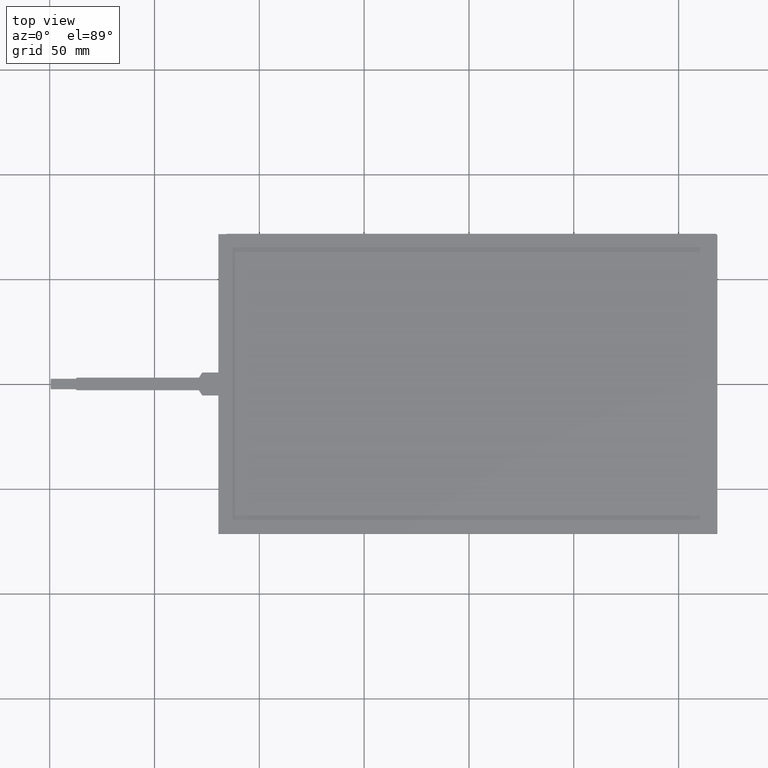
[diagram: clean part render]
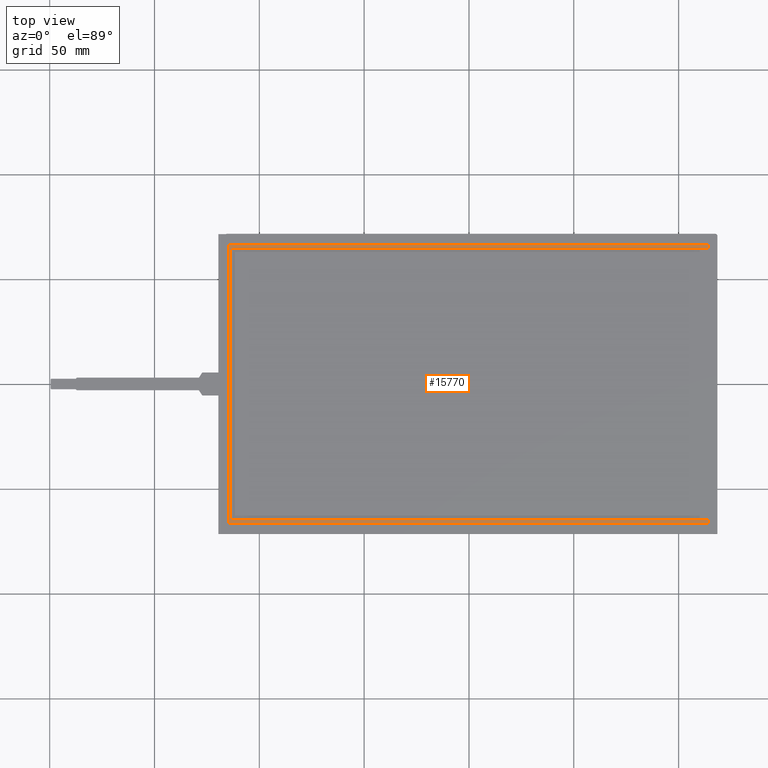
[diagram: same view with one face highlighted and labeled with its STEP entity id]
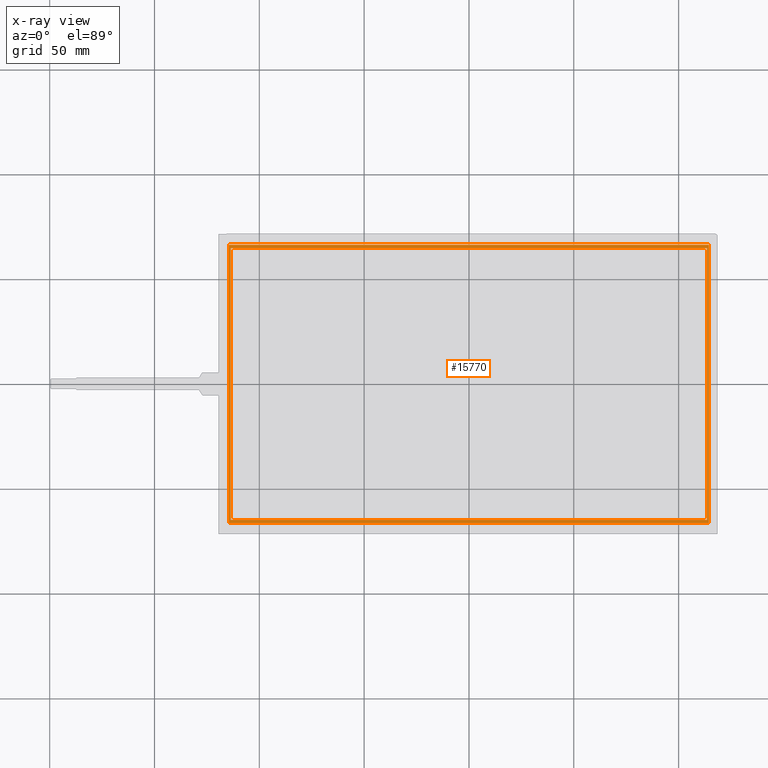
[diagram: x-ray of the same camera — body ghosted, the highlighted face saturated]
A machine part, top view. The second image highlights one B-rep face of the part: STEP entity #15770.
The next image is the same camera in x-ray: the body ghosted, the highlighted face saturated — about 0% of this face is hidden behind the body in this view.
In plain terms, the highlighted planar face has unit normal (0, 0, -1).
Its self-contained STEP definition (entity closure, byte-faithful):
#397=FACE_BOUND('',#1362,.T.);
#513=FACE_OUTER_BOUND('',#1361,.T.);
#1361=EDGE_LOOP('',(#10479,#10480,#10481,#10482));
#1362=EDGE_LOOP('',(#10483,#10484,#10485,#10486));
#2324=LINE('',#22079,#4419);
#2327=LINE('',#22085,#4422);
#2331=LINE('',#22092,#4426);
#2333=LINE('',#22095,#4428);
#2336=LINE('',#22103,#4431);
#2340=LINE('',#22110,#4435);
#2343=LINE('',#22116,#4438);
#2345=LINE('',#22119,#4440);
#4419=VECTOR('',#17802,10.);
#4422=VECTOR('',#17807,10.);
#4426=VECTOR('',#17813,10.);
#4428=VECTOR('',#17817,10.);
#4431=VECTOR('',#17822,10.);
#4435=VECTOR('',#17828,10.);
#4438=VECTOR('',#17833,10.);
#4440=VECTOR('',#17837,10.);
#6497=VERTEX_POINT('',#22076);
#6498=VERTEX_POINT('',#22078);
#6500=VERTEX_POINT('',#22084);
#6502=VERTEX_POINT('',#22090);
#6505=VERTEX_POINT('',#22100);
#6506=VERTEX_POINT('',#22102);
#6508=VERTEX_POINT('',#22108);
#6510=VERTEX_POINT('',#22114);
#8056=EDGE_CURVE('',#6497,#6498,#2324,.T.);
#8059=EDGE_CURVE('',#6498,#6500,#2327,.T.);
#8063=EDGE_CURVE('',#6502,#6497,#2331,.T.);
#8065=EDGE_CURVE('',#6500,#6502,#2333,.T.);
#8068=EDGE_CURVE('',#6505,#6506,#2336,.T.);
#8072=EDGE_CURVE('',#6508,#6505,#2340,.T.);
#8075=EDGE_CURVE('',#6510,#6508,#2343,.T.);
#8077=EDGE_CURVE('',#6506,#6510,#2345,.T.);
#10479=ORIENTED_EDGE('',*,*,#8077,.F.);
#10480=ORIENTED_EDGE('',*,*,#8068,.F.);
#10481=ORIENTED_EDGE('',*,*,#8072,.F.);
#10482=ORIENTED_EDGE('',*,*,#8075,.F.);
#10483=ORIENTED_EDGE('',*,*,#8065,.F.);
#10484=ORIENTED_EDGE('',*,*,#8059,.F.);
#10485=ORIENTED_EDGE('',*,*,#8056,.F.);
#10486=ORIENTED_EDGE('',*,*,#8063,.F.);
#15053=PLANE('',#16638);
#15770=ADVANCED_FACE('',(#513,#397),#15053,.F.);
#16638=AXIS2_PLACEMENT_3D('',#22120,#17838,#17839);
#17802=DIRECTION('',(-1.,-6.1232339957368E-17,-3.74939945665466E-33));
#17807=DIRECTION('',(6.1232339957368E-17,-1.,0.));
#17813=DIRECTION('',(-6.1232339957368E-17,1.,0.));
#17817=DIRECTION('',(1.,6.1232339957368E-17,3.74939945665466E-33));
#17822=DIRECTION('',(6.1232339957368E-17,-1.,0.));
#17828=DIRECTION('',(1.,6.1232339957368E-17,3.74939945665466E-33));
#17833=DIRECTION('',(-3.32976942309511E-16,1.,-1.01887906440796E-48));
#17837=DIRECTION('',(-1.,-2.16359127085152E-16,-3.74939945665466E-33));
#17838=DIRECTION('center_axis',(3.74939945665466E-33,2.29584502165849E-49,
-1.));
#17839=DIRECTION('ref_axis',(-1.,-6.1232339957368E-17,-3.74939945665466E-33));
#22076=CARTESIAN_POINT('',(113.61,64.89,-0.2));
#22078=CARTESIAN_POINT('',(-113.61,64.89,-0.2));
#22079=CARTESIAN_POINT('',(-113.61,64.89,-0.2));
#22084=CARTESIAN_POINT('',(-113.61,-64.89,-0.2));
#22085=CARTESIAN_POINT('',(-113.61,-64.89,-0.2));
#22090=CARTESIAN_POINT('',(113.61,-64.89,-0.2));
#22092=CARTESIAN_POINT('',(113.61,64.89,-0.2));
#22095=CARTESIAN_POINT('',(113.61,-64.89,-0.2));
#22100=CARTESIAN_POINT('',(114.41,66.39,-0.2));
#22102=CARTESIAN_POINT('',(114.41,-66.39,-0.2));
#22103=CARTESIAN_POINT('',(114.41,-66.39,-0.2));
#22108=CARTESIAN_POINT('',(-114.61,66.39,-0.2));
#22110=CARTESIAN_POINT('',(114.41,66.39,-0.2));
#22114=CARTESIAN_POINT('',(-114.61,-66.39,-0.2));
#22116=CARTESIAN_POINT('',(-114.61,66.39,-0.2));
#22119=CARTESIAN_POINT('',(-114.61,-66.39,-0.2));
#22120=CARTESIAN_POINT('Origin',(-0.100000000000016,-1.77696916279982E-14,
-0.2));